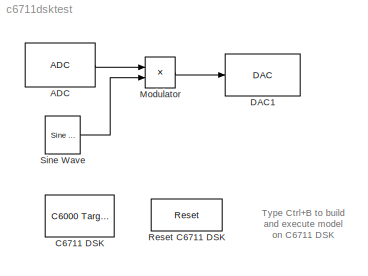
MODEL c6711dsktest
KIND model
BLOCK [Reference] ADC  REF=c6711dsklib/ADC
  ADCsource = Line In
  FrameSize = 256
  MicGain = off
  OutputDataType = Double
  Ports = [0, 1]
  Scaling = Normalize
  SourceBlock = c6711dsklib/ADC
  SourceGain = 0.0
  SourceType = C6711DSK ADC
BLOCK [Reference] C6711 DSK  REF=c6000tgtpreflib/C6000 Target\nPreferences
  Ports = []
  ShowPortLabels = on
  SourceBlock = c6000tgtpreflib/C6000 Target\nPreferences
  SourceType = C6000 Target Preferences
  UserData = DataTag0
  UserDataPersistent = on
BLOCK [Reference] DAC1  REF=c6711dsklib/DAC
  DacAtten = 0.0
  OverflowMode = Saturate
  Ports = [1]
  Scaling = Normalize
  SourceBlock = c6711dsklib/DAC
  SourceType = C6711DSK DAC
BLOCK [Product] Modulator
  Ports = [2, 1]
  RndMeth = Floor
BLOCK [Reference] Reset C6711 DSK  REF=c6711dsklib/Reset
  Ports = []
  ShowPortLabels = on
  SourceBlock = c6711dsklib/Reset
  SourceType = C6711DSK RESET
BLOCK [Reference] Sine Wave  REF=dspsrcs4/Sine Wave
  Amplitude = 1
  CompMethod = Differential
  Frequency = 2000
  OutComplex = Real
  Phase = 0
  Ports = [0, 1]
  ResetState = Restart at time zero
  SampleMode = Discrete
  SampleTime = 1/8000
  SamplesPerFrame = 256
  SourceBlock = dspsrcs4/Sine Wave
  SourceType = Sine Wave
  TableSize = Speed
  additionalParams = off
  allowOverrides = on
  dataType = double
  fracBitsMode = Best precision
  numFracBits = 14
  udDataType = sfix(16)
  wordLen = 16
ANNOTATION (root): Type Ctrl+B to build\nand execute model\non C6711 DSK
LINE ADC:1 -> Modulator:1
LINE Modulator:1 -> DAC1:1
LINE Sine Wave:1 -> Modulator:2
